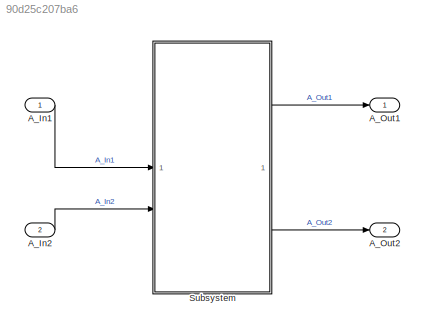
MODEL slx_90d25c207ba6
KIND model
CONFIG AbsTol = auto
CONFIG EnableMultiTasking = off
CONFIG FixedStep = auto
CONFIG MaxStep = auto
CONFIG MinStep = auto
CONFIG RelTol = 1e-3
CONFIG SampleTimeConstraint = Unconstrained
CONFIG SolverName = VariableStepAuto
CONFIG StartTime = 0.0
CONFIG StopTime = 10.0
BLOCK [Inport] A_In1
BLOCK [Inport] A_In2
  Port = 2
BLOCK [Outport] A_Out1
BLOCK [Outport] A_Out2
  Port = 2
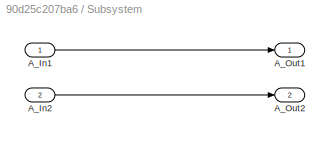
BLOCK [SubSystem] Subsystem
BLOCK [Inport] Subsystem/A_In1
BLOCK [Inport] Subsystem/A_In2
  Port = 2
BLOCK [Outport] Subsystem/A_Out1
BLOCK [Outport] Subsystem/A_Out2
  Port = 2
LINE A_In1:1 -> Subsystem:1
LINE A_In2:1 -> Subsystem:2
LINE Subsystem/A_In1:1 -> Subsystem/A_Out1:1
LINE Subsystem/A_In2:1 -> Subsystem/A_Out2:1
LINE Subsystem:1 -> A_Out1:1
LINE Subsystem:2 -> A_Out2:1
